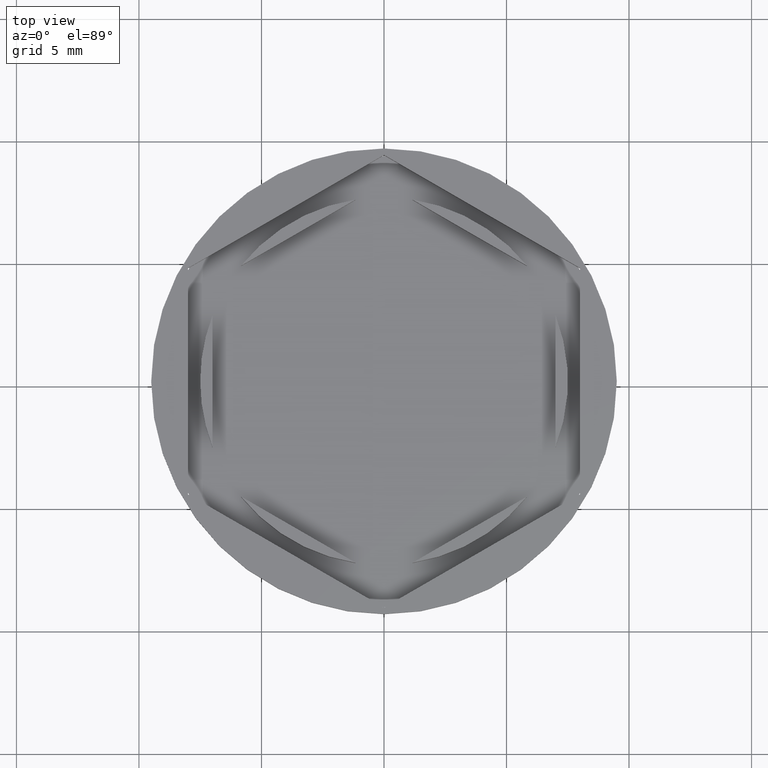
[diagram: clean part render]
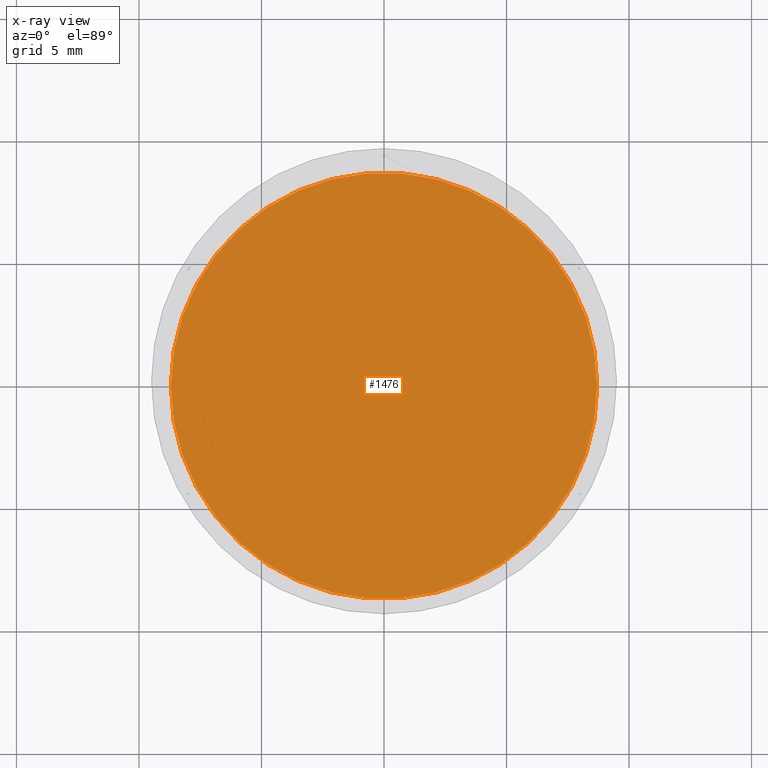
[diagram: x-ray — body ghosted, one internal face saturated and labeled with its STEP entity id]
A machine part, top view, then the same camera in x-ray: the body is ghosted and one INTERNAL B-rep face — a face not visible from any outside direction — is saturated and labeled: STEP entity #1476.
In plain terms, the highlighted planar face has unit normal (0, 0, -1).
Its self-contained STEP definition (entity closure, byte-faithful):
#84 = AXIS2_PLACEMENT_3D ( 'NONE', #242, #1064, #1727 ) ;
#177 = DIRECTION ( 'NONE',  ( -1.000000000000000000, 0.000000000000000000, -0.000000000000000000 ) ) ;
#242 = CARTESIAN_POINT ( 'NONE',  ( 0.000000000000000000, 0.000000000000000000, -11.00000000000000000 ) ) ;
#257 = EDGE_CURVE ( 'NONE', #2157, #1253, #344, .T. ) ;
#344 = CIRCLE ( 'NONE', #84, 8.700000000000001066 ) ;
#423 = CIRCLE ( 'NONE', #2063, 8.700000000000001066 ) ;
#442 = DIRECTION ( 'NONE',  ( -1.000000000000000000, 0.000000000000000000, 0.000000000000000000 ) ) ;
#450 = EDGE_LOOP ( 'NONE', ( #1417, #1157 ) ) ;
#625 = CARTESIAN_POINT ( 'NONE',  ( 8.700000000000001066, 1.083812417245407678E-15, -11.00000000000000000 ) ) ;
#686 = PLANE ( 'NONE',  #1851 ) ;
#1064 = DIRECTION ( 'NONE',  ( -0.000000000000000000, -0.000000000000000000, 1.000000000000000000 ) ) ;
#1157 = ORIENTED_EDGE ( 'NONE', *, *, #257, .T. ) ;
#1253 = VERTEX_POINT ( 'NONE', #1902 ) ;
#1375 = DIRECTION ( 'NONE',  ( 0.000000000000000000, 0.000000000000000000, -1.000000000000000000 ) ) ;
#1417 = ORIENTED_EDGE ( 'NONE', *, *, #2150, .T. ) ;
#1476 = ADVANCED_FACE ( 'NONE', ( #1715 ), #686, .F. ) ;
#1598 = DIRECTION ( 'NONE',  ( -0.000000000000000000, -0.000000000000000000, 1.000000000000000000 ) ) ;
#1715 = FACE_OUTER_BOUND ( 'NONE', #450, .T. ) ;
#1727 = DIRECTION ( 'NONE',  ( -1.000000000000000000, 0.000000000000000000, 0.000000000000000000 ) ) ;
#1837 = CARTESIAN_POINT ( 'NONE',  ( 0.000000000000000000, 0.000000000000000000, -11.00000000000000000 ) ) ;
#1851 = AXIS2_PLACEMENT_3D ( 'NONE', #1837, #1375, #177 ) ;
#1902 = CARTESIAN_POINT ( 'NONE',  ( -8.700000000000001066, 0.000000000000000000, -11.00000000000000000 ) ) ;
#1919 = CARTESIAN_POINT ( 'NONE',  ( 0.000000000000000000, 0.000000000000000000, -11.00000000000000000 ) ) ;
#2063 = AXIS2_PLACEMENT_3D ( 'NONE', #1919, #1598, #442 ) ;
#2150 = EDGE_CURVE ( 'NONE', #1253, #2157, #423, .T. ) ;
#2157 = VERTEX_POINT ( 'NONE', #625 ) ;